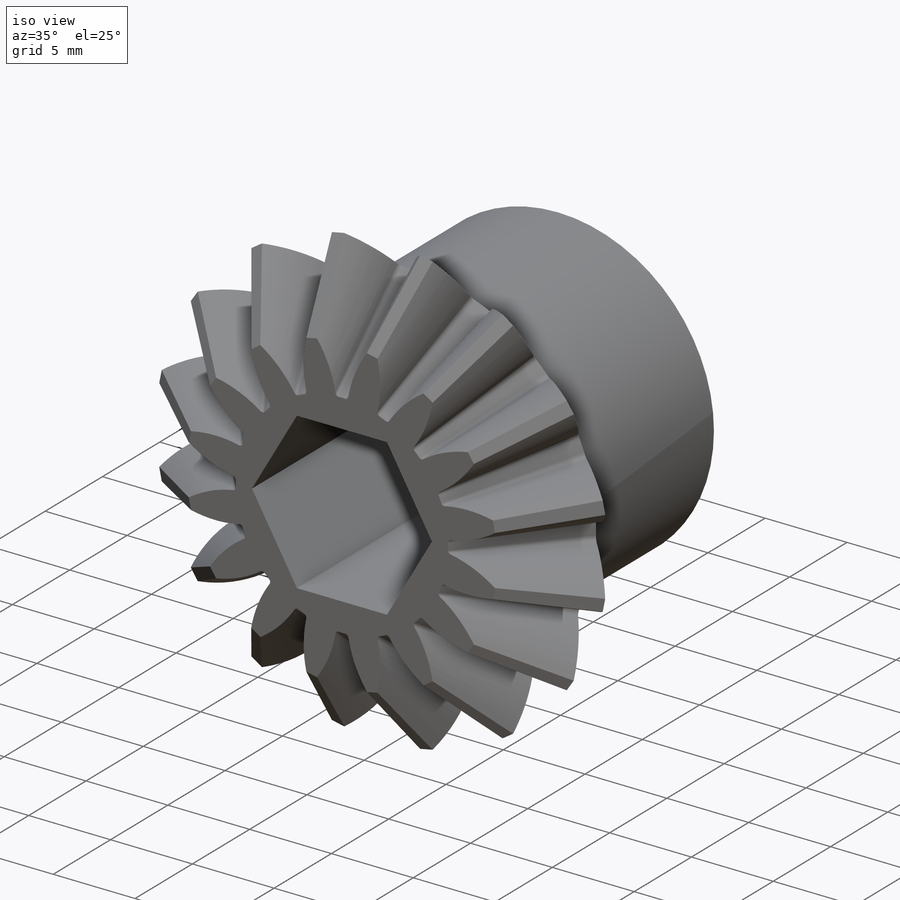
[diagram: iso view]
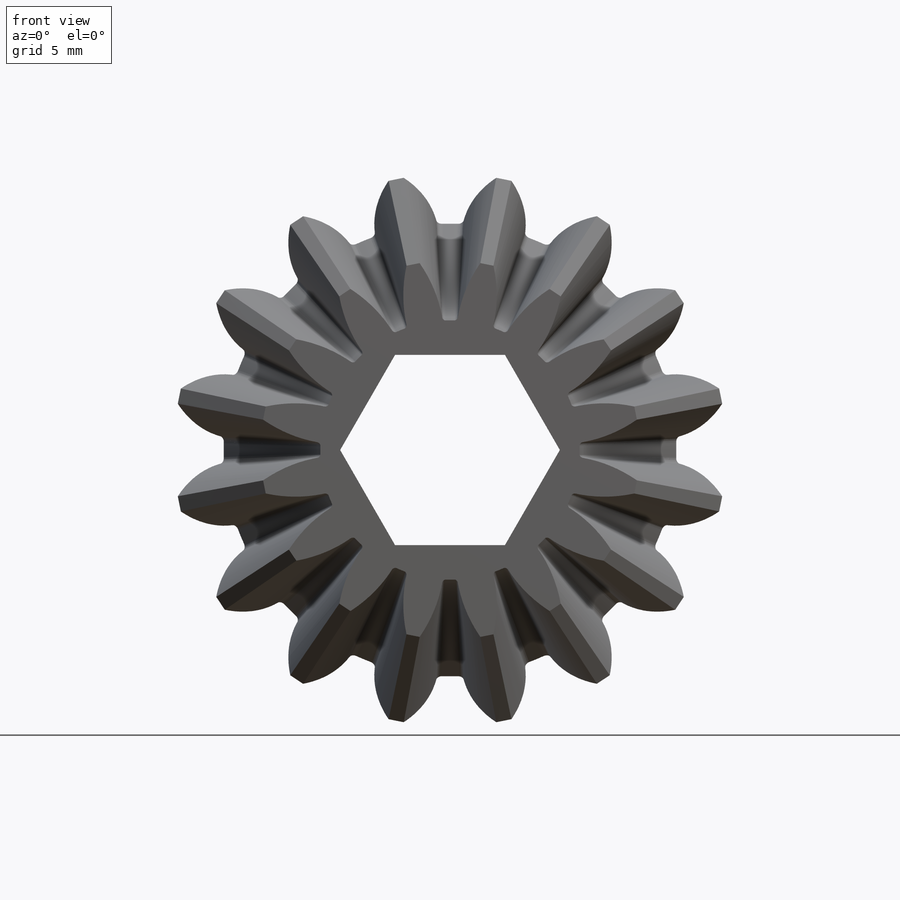
[diagram: front view]
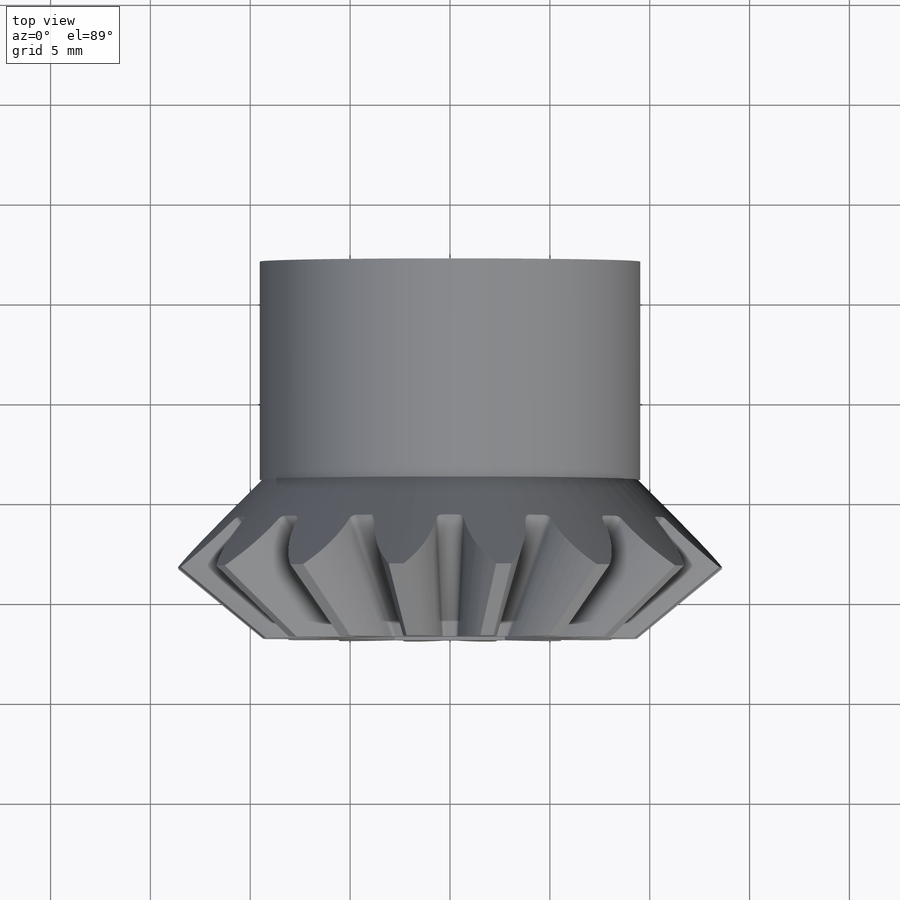
[diagram: top view]
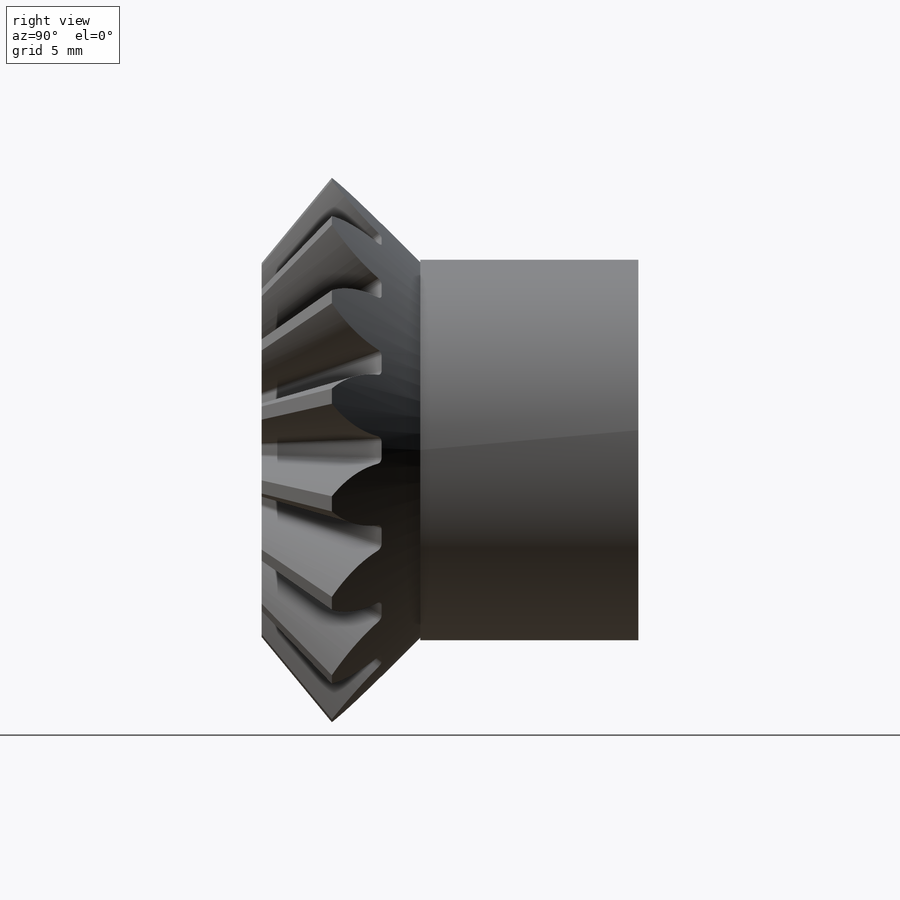
[diagram: right view]
SOLIDWORKS PART (.sldprt)
format: sldprt  version: not decoded by parser v0  size: 1,389,056 bytes
history: native  units: mm
features: sketch x7, plane x2, cut_extrude x2, material x1, revolve x1, pattern_circular x1, extrude x1 + 1 further entry (+13 scaffold rows collapsed)
feature tree (29):
  scaffold x13  (default folders/planes/origin — collapsed)
  material  "Plain Carbon Steel"
  "Annotations"  RD1=18.863598mm RD2=10.922mm
  sketch  "gearBodySketch"  dims[c1.md=~125.637307mm c1.D1=~37.328287mm c1.pitchAnglePinion=33.691deg c1.hd=~40.006738mm c1.hp=~41.259776mm c1.face=~38.61867mm c1.bodyThickness=~52.480982mm c2.D1=~38.61867mm c3.D1=56.309deg c4.D1=~38.61867mm c5.D1=56.309deg c6.D1=~38.61867mm c7.D1=56.309deg c8.D1=~38.61867mm c8.faceAngle=56.309deg c9.D1=~37.328287mm c10.D1=33.691deg c10.bodyThickness=~52.480982mm c10.face=~38.61867mm c11.D1=~38.61867mm c12.D1=123.691deg c13.D1=~38.61867mm c14.D1=56.309deg c14.D2=~37.328287mm c15.D2=33.691deg c15.D1=~38.61867mm c15.faceAngle=~50.994397deg c16.D2=~21.422307mm c17.D2=213.691deg c18.D2=~37.328287mm c19.D2=33.691deg c20.D2=~37.328287mm c21.D2=123.691deg c22.D2=~78.881619mm c23.D2=123.691deg c24.D2=~31.058675mm c24.backAngle=~153.434949deg c24.hd=31.75mm c24.D4=~118.888357mm c24.D5=~52.480982mm c24.face=~9.71804mm c24.md=29.972mm c24.hp=40.386mm c24.pitchApexToCrown=~11.577468mm c24.centerToCrown=35.56mm c24.D1=~34.91484mm c24.pitchApexToBack=~16.001998mm c24.od=~43.192719mm c25.face=5.588mm c25.D2=~33.35274mm c25.D1=29.9974mm c25.od=~27.645064mm c26.D1=29.9974mm c26.D3=~13.220719mm c27.D3=~85.643885deg c28.D3=~6.61036mm c29.D3=~108.71287deg c30.D3=~29.383001mm c31.D3=~120.921166deg c32.D3=~6.61036mm c33.D3=~153.434949deg c33.D1=~6.61036mm c33.backAngle=135.0deg c34.D1=29.972mm]
  revolve  "gearBody"  Angle=360deg
  plane  "Plane1"  pitchAngleOfMate=45deg
  plane  "Plane2"  Offset=17.960512mm outerConeDistance=17.960512mm
  sketch  "Sketch1"  dims[D1=~18.196402mm]
  sketch  "toothSketch"  dims[minorDiameter=21.5265mm baseDia=~23.868193mm pd=25.4mm od=28.575mm overOD=31.115mm flankRadius2=~6.137957mm rFillet=~0.311705mm toothAngle=~5.615925deg flankRadius=~6.137957mm D10=279.4mm D2=~0.926454mm]
  pattern_circular  "CirPattern1"  Count=16 Angle=22.5deg numTeeth=16 toothAng=22.5deg
  sketch  "hub1Sketch"  dims[hd=19.05mm]
  extrude  "hub1"  Depth=10.922mm hp=10.922mm
  sketch  "boreSketch"  dims[bore=9.525mm]
  cut_extrude  "bore"  [1 undecoded]
  sketch  "Sketch2"
  sketch  "Sketch3"  dims[D1=9.525mm]
  cut_extrude  "Cut-Extrude1"  [1 undecoded]
decode coverage: 9 of 12 modeling features carry decoded parameters; 1 rows unclassified (native names shown)
note: ~ marks probable driven/reference dimensions
note: 2 parameter values undecoded
note: suppression state not decoded; provenance and decode notes live in map.json
